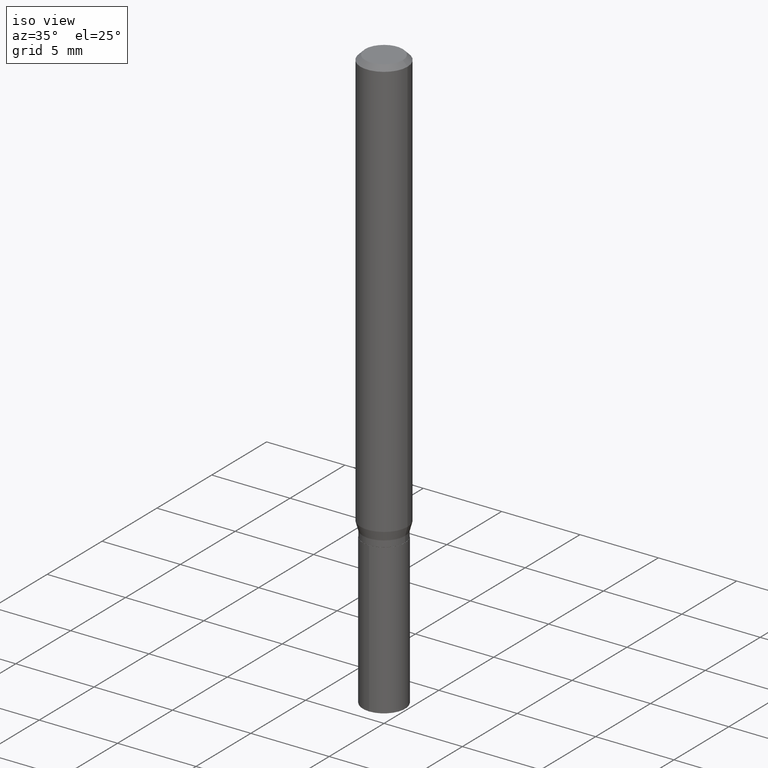
[diagram: clean part render]
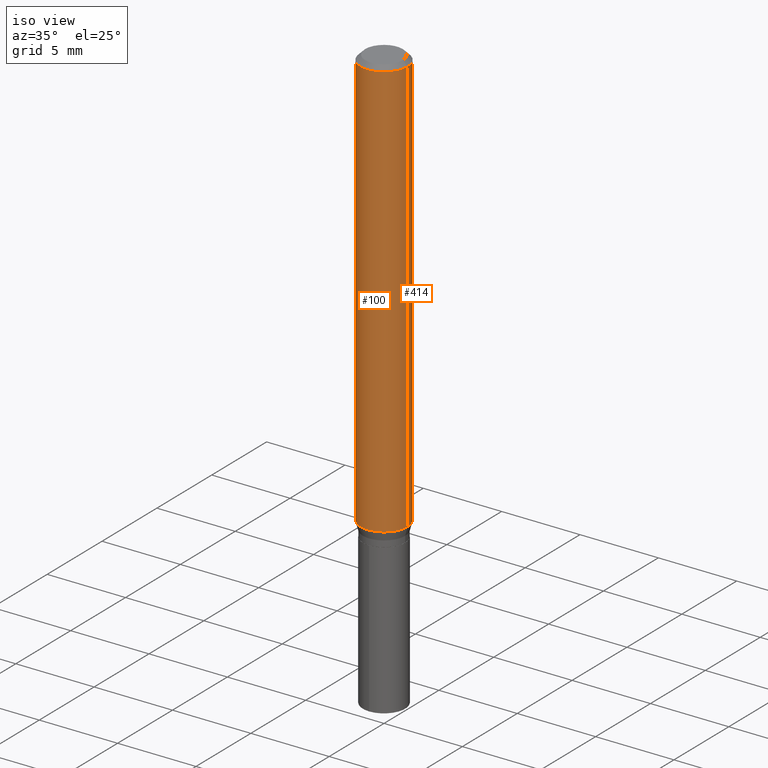
[diagram: same view with one multi-face feature highlighted, each face labeled with its STEP entity id]
A machine part, iso view. The highlighted faces form ONE feature: a constant-radius fillet chain: 2 tangent blend faces with common blend radius 1.4999 mm. The faces share edges in the B-rep.
Their STEP definitions:
[1] entity #100 (Cylinder):
#25 = CARTESIAN_POINT ( 'NONE',  ( 0.000000000000000000, 0.000000000000000000, 0.000000000000000000 ) ) ;
#41 = CIRCLE ( 'NONE', #135, 0.05904999999999999832 ) ;
#46 = ORIENTED_EDGE ( 'NONE', *, *, #221, .F. ) ;
#57 = FACE_OUTER_BOUND ( 'NONE', #66, .T. ) ;
#63 = EDGE_CURVE ( 'NONE', #101, #199, #293, .T. ) ;
#66 = EDGE_LOOP ( 'NONE', ( #46, #328, #371, #488 ) ) ;
#71 = EDGE_CURVE ( 'NONE', #199, #423, #434, .T. ) ;
#83 = CARTESIAN_POINT ( 'NONE',  ( 2.888098660104664204E-31, -4.123439461173780263E-17, -0.01181000000000007218 ) ) ;
#100 = ADVANCED_FACE ( 'NONE', ( #57 ), #247, .T. ) ;
#101 = VERTEX_POINT ( 'NONE', #250 ) ;
#122 = DIRECTION ( 'NONE',  ( -2.445468806185136597E-29, 3.491481338843145583E-15, 1.000000000000000000 ) ) ;
#135 = AXIS2_PLACEMENT_3D ( 'NONE', #83, #122, #266 ) ;
#166 = DIRECTION ( 'NONE',  ( 1.000000000000000000, -6.982962677686265133E-15, 0.000000000000000000 ) ) ;
#171 = DIRECTION ( 'NONE',  ( -2.445468806185136877E-29, 3.491481338843145188E-15, 1.000000000000000000 ) ) ;
#178 = LINE ( 'NONE', #471, #391 ) ;
#199 = VERTEX_POINT ( 'NONE', #396 ) ;
#221 = EDGE_CURVE ( 'NONE', #101, #300, #178, .T. ) ;
#247 = CYLINDRICAL_SURFACE ( 'NONE', #398, 0.05905000000000006771 ) ;
#250 = CARTESIAN_POINT ( 'NONE',  ( -0.05905000000000013016, -3.269457010683451957E-15, -1.056580900235343234 ) ) ;
#266 = DIRECTION ( 'NONE',  ( 1.000000000000000000, -6.982962677686266711E-15, 0.000000000000000000 ) ) ;
#293 = CIRCLE ( 'NONE', #383, 0.05905000000000013016 ) ;
#294 = CARTESIAN_POINT ( 'NONE',  ( 0.05904999999999999832, -4.535783407291118600E-16, -0.01181000000000007218 ) ) ;
#300 = VERTEX_POINT ( 'NONE', #374 ) ;
#313 = CARTESIAN_POINT ( 'NONE',  ( 2.583835632736541503E-29, -3.689032496149791844E-15, -1.056580900235343234 ) ) ;
#321 = CARTESIAN_POINT ( 'NONE',  ( 0.05905000000000006771, -4.123439461173745257E-16, 2.879382386107503723E-30 ) ) ;
#325 = DIRECTION ( 'NONE',  ( -2.445468806185136877E-29, 3.491481338843145188E-15, 1.000000000000000000 ) ) ;
#328 = ORIENTED_EDGE ( 'NONE', *, *, #63, .T. ) ;
#371 = ORIENTED_EDGE ( 'NONE', *, *, #71, .T. ) ;
#374 = CARTESIAN_POINT ( 'NONE',  ( -0.05904999999999999832, -1.445557959914424505E-15, -0.01181000000000007218 ) ) ;
#379 = EDGE_CURVE ( 'NONE', #300, #423, #41, .T. ) ;
#383 = AXIS2_PLACEMENT_3D ( 'NONE', #313, #389, #166 ) ;
#389 = DIRECTION ( 'NONE',  ( -2.445468806185136597E-29, 3.491481338843145583E-15, 1.000000000000000000 ) ) ;
#391 = VECTOR ( 'NONE', #325, 39.37007874015748143 ) ;
#396 = CARTESIAN_POINT ( 'NONE',  ( 0.05905000000000013016, -4.101376442267166764E-15, -1.056580900235343234 ) ) ;
#398 = AXIS2_PLACEMENT_3D ( 'NONE', #25, #399, #431 ) ;
#399 = DIRECTION ( 'NONE',  ( -2.445468806185136597E-29, 3.491481338843145583E-15, 1.000000000000000000 ) ) ;
#423 = VERTEX_POINT ( 'NONE', #294 ) ;
#431 = DIRECTION ( 'NONE',  ( 1.000000000000000000, -6.982962677686266711E-15, 4.876176775795936353E-29 ) ) ;
#434 = LINE ( 'NONE', #321, #450 ) ;
#450 = VECTOR ( 'NONE', #171, 39.37007874015748143 ) ;
#471 = CARTESIAN_POINT ( 'NONE',  ( -0.05905000000000006771, 4.195754854663396409E-16, -2.904631170795525045E-30 ) ) ;
#488 = ORIENTED_EDGE ( 'NONE', *, *, #379, .F. ) ;
[2] entity #414 (Cylinder):
#17 = CIRCLE ( 'NONE', #125, 0.05904999999999999832 ) ;
#21 = DIRECTION ( 'NONE',  ( -2.445468806185136597E-29, 3.491481338843145583E-15, 1.000000000000000000 ) ) ;
#71 = EDGE_CURVE ( 'NONE', #199, #423, #434, .T. ) ;
#77 = CARTESIAN_POINT ( 'NONE',  ( 2.888098660104664204E-31, -4.123439461173780263E-17, -0.01181000000000007218 ) ) ;
#93 = CARTESIAN_POINT ( 'NONE',  ( 0.000000000000000000, 0.000000000000000000, 0.000000000000000000 ) ) ;
#101 = VERTEX_POINT ( 'NONE', #250 ) ;
#125 = AXIS2_PLACEMENT_3D ( 'NONE', #77, #375, #192 ) ;
#127 = FACE_OUTER_BOUND ( 'NONE', #429, .T. ) ;
#160 = ORIENTED_EDGE ( 'NONE', *, *, #207, .T. ) ;
#171 = DIRECTION ( 'NONE',  ( -2.445468806185136877E-29, 3.491481338843145188E-15, 1.000000000000000000 ) ) ;
#178 = LINE ( 'NONE', #471, #391 ) ;
#180 = ORIENTED_EDGE ( 'NONE', *, *, #221, .T. ) ;
#192 = DIRECTION ( 'NONE',  ( 1.000000000000000000, -6.982962677686266711E-15, 0.000000000000000000 ) ) ;
#199 = VERTEX_POINT ( 'NONE', #396 ) ;
#207 = EDGE_CURVE ( 'NONE', #199, #101, #441, .T. ) ;
#221 = EDGE_CURVE ( 'NONE', #101, #300, #178, .T. ) ;
#231 = AXIS2_PLACEMENT_3D ( 'NONE', #435, #21, #470 ) ;
#250 = CARTESIAN_POINT ( 'NONE',  ( -0.05905000000000013016, -3.269457010683451957E-15, -1.056580900235343234 ) ) ;
#274 = CYLINDRICAL_SURFACE ( 'NONE', #342, 0.05905000000000006771 ) ;
#294 = CARTESIAN_POINT ( 'NONE',  ( 0.05904999999999999832, -4.535783407291118600E-16, -0.01181000000000007218 ) ) ;
#300 = VERTEX_POINT ( 'NONE', #374 ) ;
#321 = CARTESIAN_POINT ( 'NONE',  ( 0.05905000000000006771, -4.123439461173745257E-16, 2.879382386107503723E-30 ) ) ;
#325 = DIRECTION ( 'NONE',  ( -2.445468806185136877E-29, 3.491481338843145188E-15, 1.000000000000000000 ) ) ;
#342 = AXIS2_PLACEMENT_3D ( 'NONE', #93, #372, #415 ) ;
#355 = ORIENTED_EDGE ( 'NONE', *, *, #485, .F. ) ;
#372 = DIRECTION ( 'NONE',  ( -2.445468806185136597E-29, 3.491481338843145583E-15, 1.000000000000000000 ) ) ;
#374 = CARTESIAN_POINT ( 'NONE',  ( -0.05904999999999999832, -1.445557959914424505E-15, -0.01181000000000007218 ) ) ;
#375 = DIRECTION ( 'NONE',  ( -2.445468806185136597E-29, 3.491481338843145583E-15, 1.000000000000000000 ) ) ;
#391 = VECTOR ( 'NONE', #325, 39.37007874015748143 ) ;
#396 = CARTESIAN_POINT ( 'NONE',  ( 0.05905000000000013016, -4.101376442267166764E-15, -1.056580900235343234 ) ) ;
#414 = ADVANCED_FACE ( 'NONE', ( #127 ), #274, .T. ) ;
#415 = DIRECTION ( 'NONE',  ( 1.000000000000000000, -6.982962677686266711E-15, 4.876176775795936353E-29 ) ) ;
#423 = VERTEX_POINT ( 'NONE', #294 ) ;
#429 = EDGE_LOOP ( 'NONE', ( #160, #180, #355, #463 ) ) ;
#434 = LINE ( 'NONE', #321, #450 ) ;
#435 = CARTESIAN_POINT ( 'NONE',  ( 2.583835632736541503E-29, -3.689032496149791844E-15, -1.056580900235343234 ) ) ;
#441 = CIRCLE ( 'NONE', #231, 0.05905000000000013016 ) ;
#450 = VECTOR ( 'NONE', #171, 39.37007874015748143 ) ;
#463 = ORIENTED_EDGE ( 'NONE', *, *, #71, .F. ) ;
#470 = DIRECTION ( 'NONE',  ( 1.000000000000000000, -6.982962677686265133E-15, 0.000000000000000000 ) ) ;
#471 = CARTESIAN_POINT ( 'NONE',  ( -0.05905000000000006771, 4.195754854663396409E-16, -2.904631170795525045E-30 ) ) ;
#485 = EDGE_CURVE ( 'NONE', #423, #300, #17, .T. ) ;